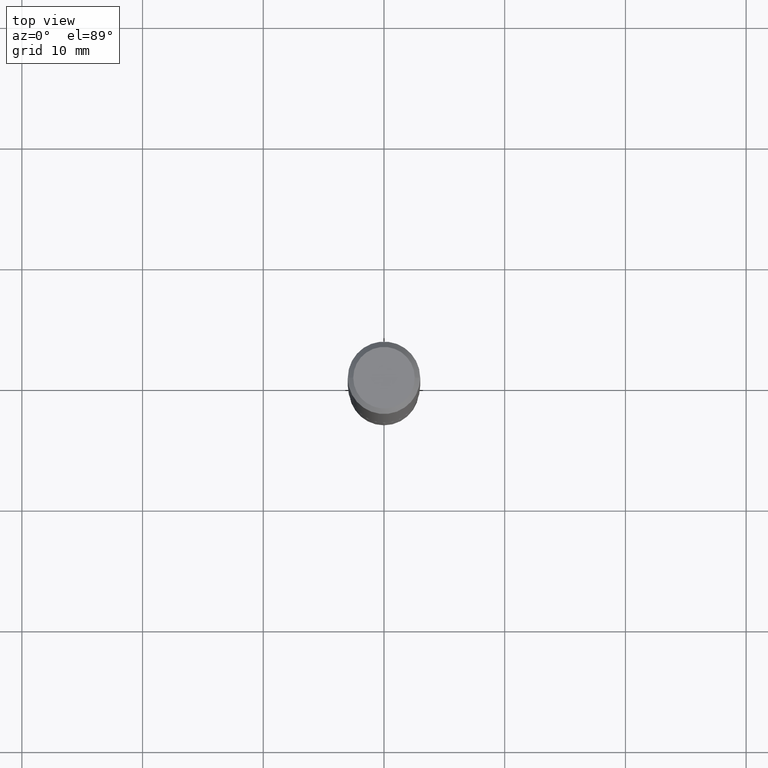
[diagram: clean part render]
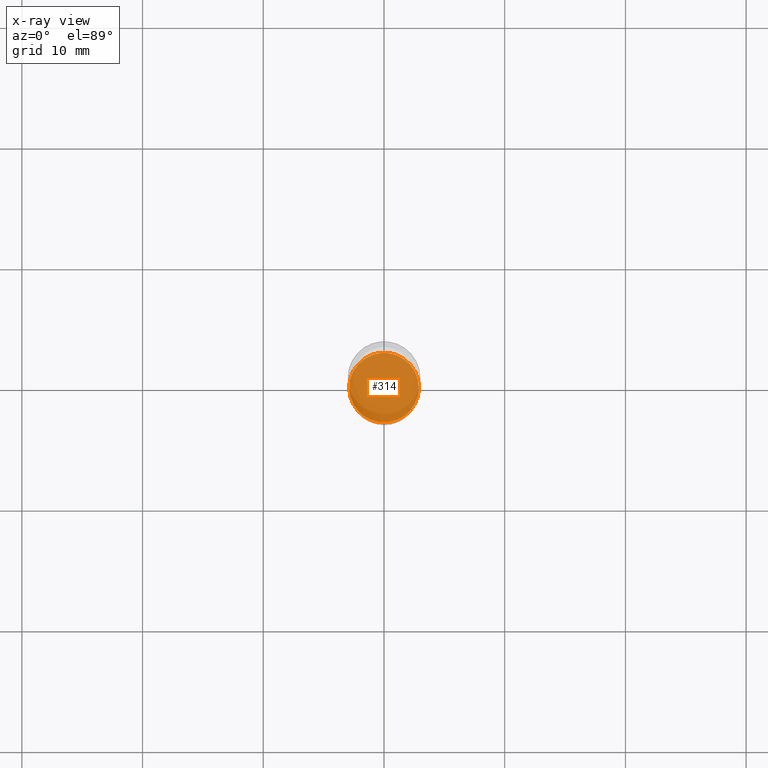
[diagram: x-ray — body ghosted, one internal face saturated and labeled with its STEP entity id]
A machine part, top view, then the same camera in x-ray: the body is ghosted and one INTERNAL B-rep face — a face not visible from any outside direction — is saturated and labeled: STEP entity #314.
In plain terms, the highlighted planar face has unit normal (-0, 0, 1).
Its self-contained STEP definition (entity closure, byte-faithful):
#30 = CARTESIAN_POINT ( 'NONE',  ( 4.602861387001665106E-29, -6.571666175970569936E-15, -1.882200000000000317 ) ) ;
#37 = DIRECTION ( 'NONE',  ( 1.000000000000000000, -6.982962677686265922E-15, 4.876176775795935793E-29 ) ) ;
#61 = AXIS2_PLACEMENT_3D ( 'NONE', #131, #278, #315 ) ;
#126 = VERTEX_POINT ( 'NONE', #347 ) ;
#131 = CARTESIAN_POINT ( 'NONE',  ( 4.602861387001665106E-29, -6.571666175970569936E-15, -1.882200000000000317 ) ) ;
#135 = CARTESIAN_POINT ( 'NONE',  ( 4.602861387001665106E-29, -6.571666175970569936E-15, -1.882200000000000317 ) ) ;
#151 = VERTEX_POINT ( 'NONE', #204 ) ;
#180 = AXIS2_PLACEMENT_3D ( 'NONE', #135, #209, #321 ) ;
#204 = CARTESIAN_POINT ( 'NONE',  ( 0.1136500000000000010, -7.365279884289614646E-15, -1.882200000000000317 ) ) ;
#209 = DIRECTION ( 'NONE',  ( -2.445468806185136597E-29, 3.491481338843145583E-15, 1.000000000000000000 ) ) ;
#218 = EDGE_LOOP ( 'NONE', ( #412, #455 ) ) ;
#240 = DIRECTION ( 'NONE',  ( -2.438088387897960049E-29, 3.491481338843145188E-15, 1.000000000000000000 ) ) ;
#241 = EDGE_CURVE ( 'NONE', #151, #126, #249, .T. ) ;
#249 = CIRCLE ( 'NONE', #61, 0.1136500000000000010 ) ;
#278 = DIRECTION ( 'NONE',  ( -2.445468806185136597E-29, 3.491481338843145583E-15, 1.000000000000000000 ) ) ;
#281 = CIRCLE ( 'NONE', #180, 0.1136500000000000010 ) ;
#314 = ADVANCED_FACE ( 'NONE', ( #358 ), #354, .F. ) ;
#315 = DIRECTION ( 'NONE',  ( 1.000000000000000000, -6.982962677686269077E-15, 0.000000000000000000 ) ) ;
#321 = DIRECTION ( 'NONE',  ( 1.000000000000000000, -6.982962677686269077E-15, 0.000000000000000000 ) ) ;
#333 = AXIS2_PLACEMENT_3D ( 'NONE', #30, #240, #37 ) ;
#347 = CARTESIAN_POINT ( 'NONE',  ( -0.1136500000000000010, -5.761485129605104669E-15, -1.882200000000000317 ) ) ;
#354 = PLANE ( 'NONE',  #333 ) ;
#358 = FACE_OUTER_BOUND ( 'NONE', #218, .T. ) ;
#412 = ORIENTED_EDGE ( 'NONE', *, *, #241, .F. ) ;
#455 = ORIENTED_EDGE ( 'NONE', *, *, #464, .F. ) ;
#464 = EDGE_CURVE ( 'NONE', #126, #151, #281, .T. ) ;